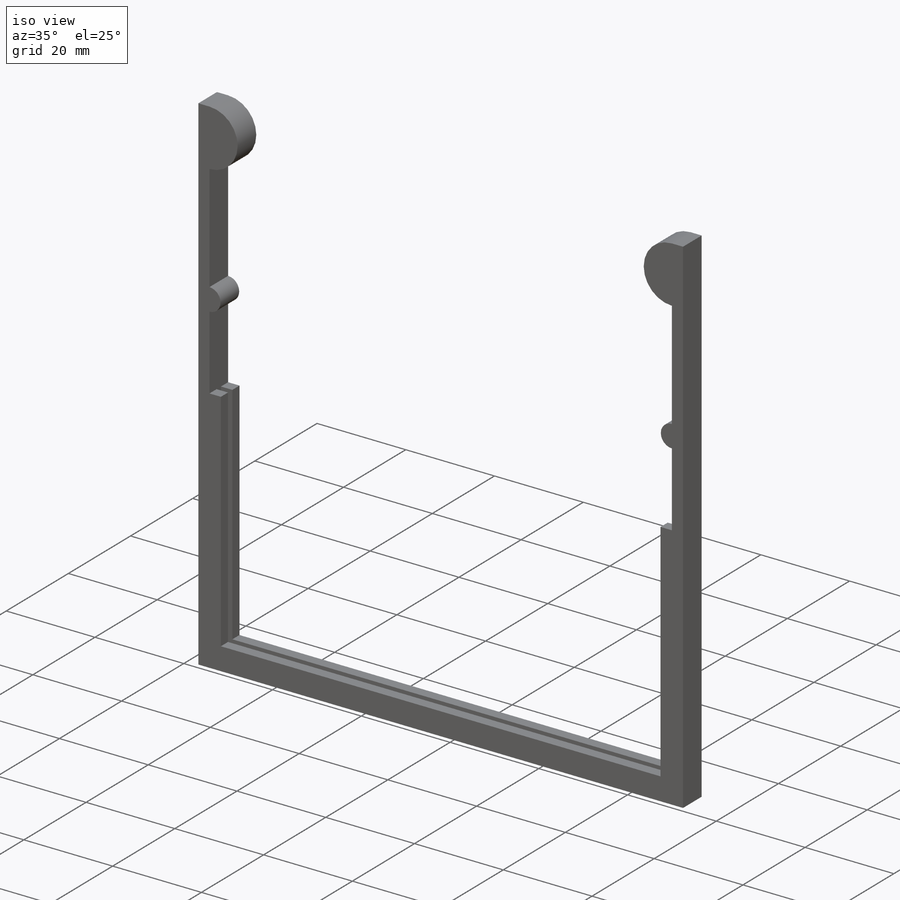
[diagram: iso view]
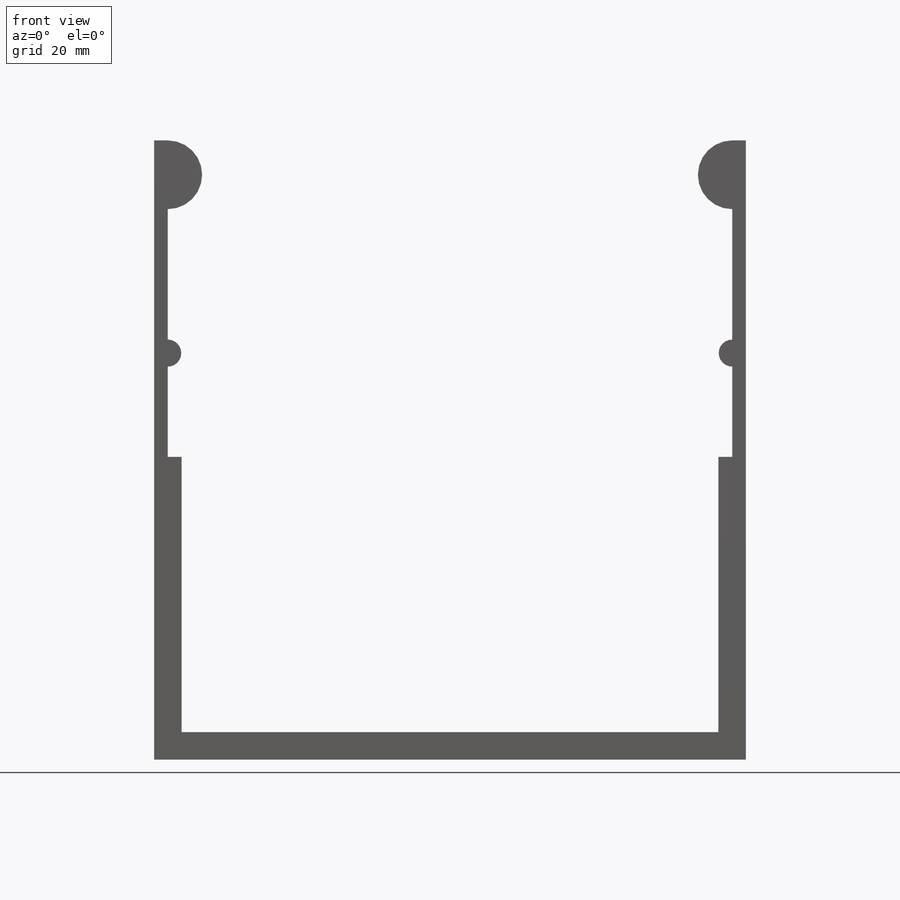
[diagram: front view]
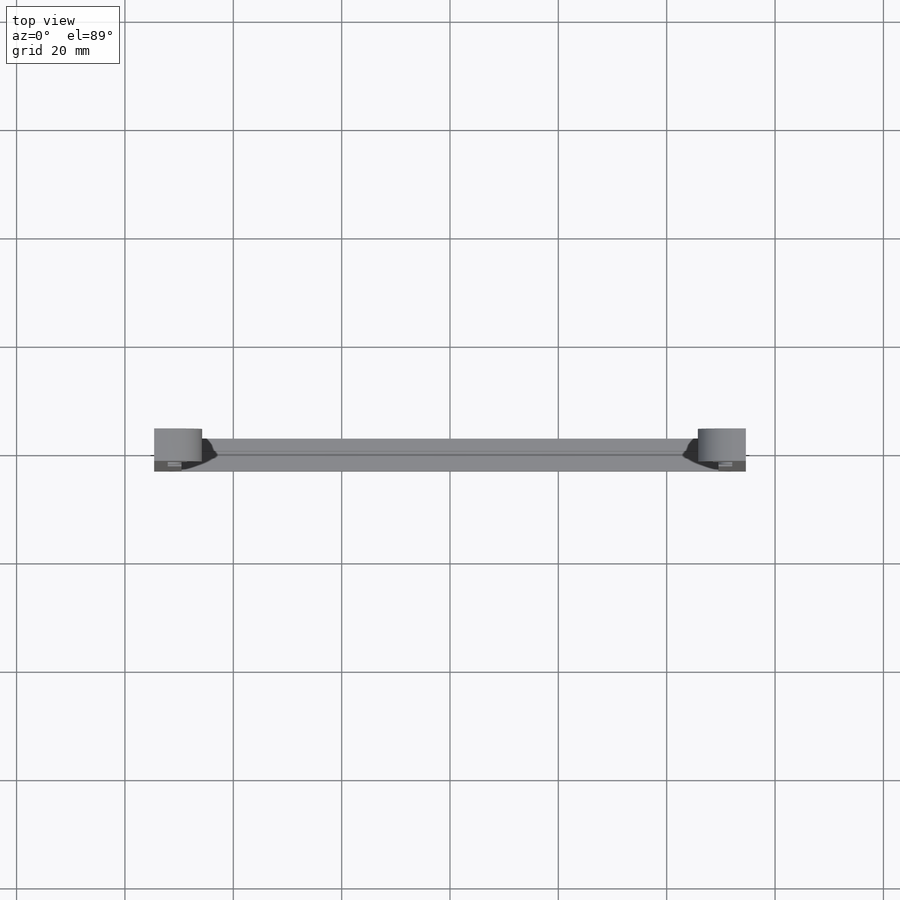
[diagram: top view]
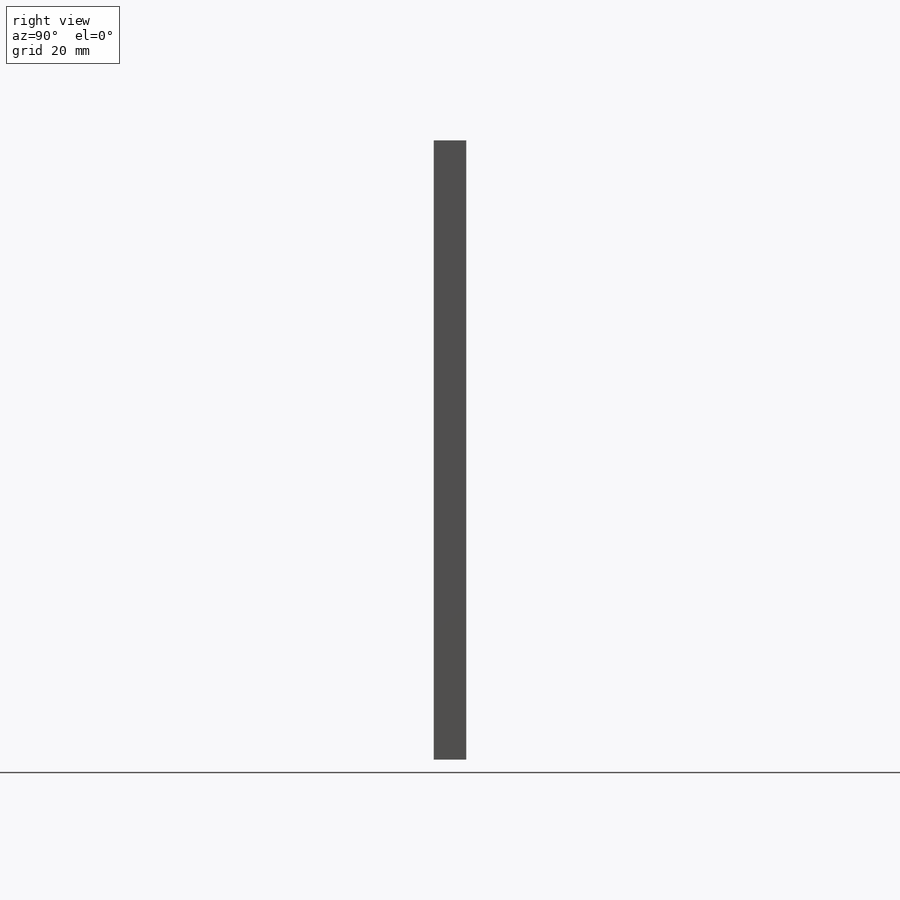
[diagram: right view]
SOLIDWORKS PART (.sldprt)
format: sldprt  version: not decoded by parser v0  size: 287,232 bytes
history: native  units: mm
features: sketch x4, material x1, extrude x1, cut_extrude x1 + 1 further entry (+12 scaffold rows collapsed)
feature tree (20):
  scaffold x12  (default folders/planes/origin — collapsed)
  material  "Material <not specified>"
  "Annotations"  RD1=2.54mm RD2=72.5mm
  sketch  "Sketch1"  dims[c1.D1=104.14mm c1.D2=90.17mm c1.D3=86.36mm c1.D4=10.16mm c1.D5=70.0mm c1.D6=~5.11232mm c1.D7=~32.070131mm c2.D7=~139.112229deg c3.D7=17.526mm c3.D8=12.192mm c3.D9=4.572mm c3.D10=10.16mm c3.D2=104.2mm c3.D11=20.574mm c3.D12=2.54mm c3.D13=2.54mm c3.D4=5.0mm c3.D3=5.0mm c3.D14=12.6mm]
  sketch  "Sketch2"  dims[c1.D1=2.54mm c1.D2=2.54mm c1.D3=50.8mm c1.D4=2.54mm c1.D5=2.54mm c1.D6=114.3mm c1.D7=12.7mm c2.D1=54.61mm c2.D2=49.53mm c2.D8=5.08mm c2.D9=15.24mm c2.D4=2.54mm c3.D1=5.08mm c3.D5=~3.32543mm c3.D8=5.08mm c4.D1=~3.32543mm c4.D5=~3.32543mm c5.D1=5.08mm]
  sketch  "Sketch3"  dims[c1.D1=2.54mm c1.D2=2.54mm c2.D1=2.54mm c2.D2=2.54mm c2.D3=52.07mm c2.D4=53.34mm]
  extrude  "Boss-Extrude1"  Depth=3mm
  cut_extrude  "Cut-Extrude1"  Depth=0.7mm
  sketch  "Sketch4"  dims[c1.D1=7.62mm c1.D2=3.81mm c1.D3=3.81mm c1.D4=46.99mm c2.D1=3.81mm c2.D2=3.81mm c2.D3=3.81mm c2.D5=3.81mm c2.D6=3.81mm c2.D7=3.81mm c2.D8=3.81mm c2.D9=7.62mm c2.D10=7.62mm c3.D2=2.54mm c3.D4=52.07mm c3.D5=53.34mm c4.D2=3.81mm c4.D4=2.54mm c4.D3=6.35mm c4.D5=6.35mm c5.D4=3.81mm]
decode coverage: 6 of 6 modeling features carry decoded parameters; 1 rows unclassified (native names shown)
note: ~ marks probable driven/reference dimensions
note: suppression state not decoded; provenance and decode notes live in map.json
